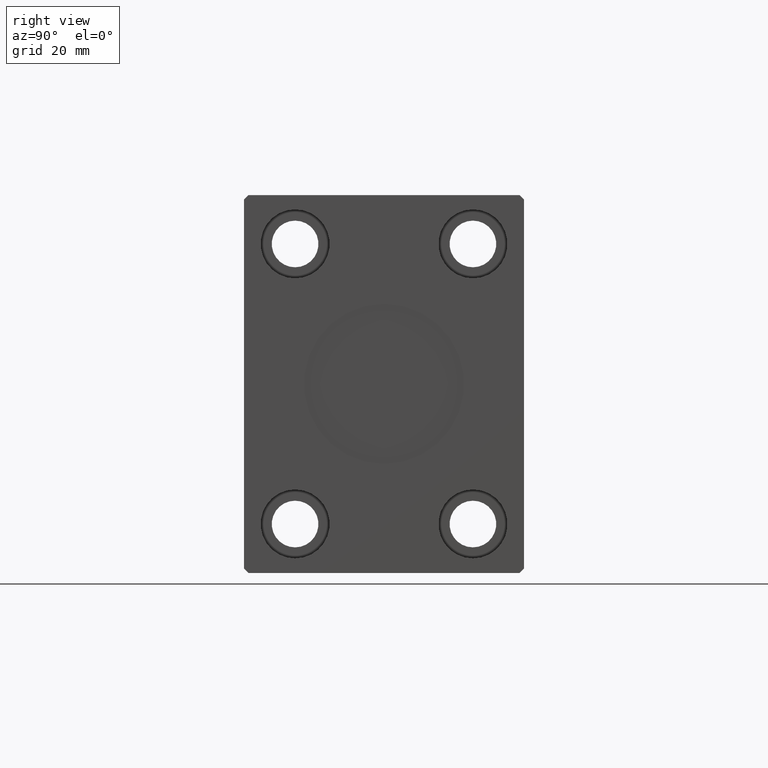
[diagram: clean part render]
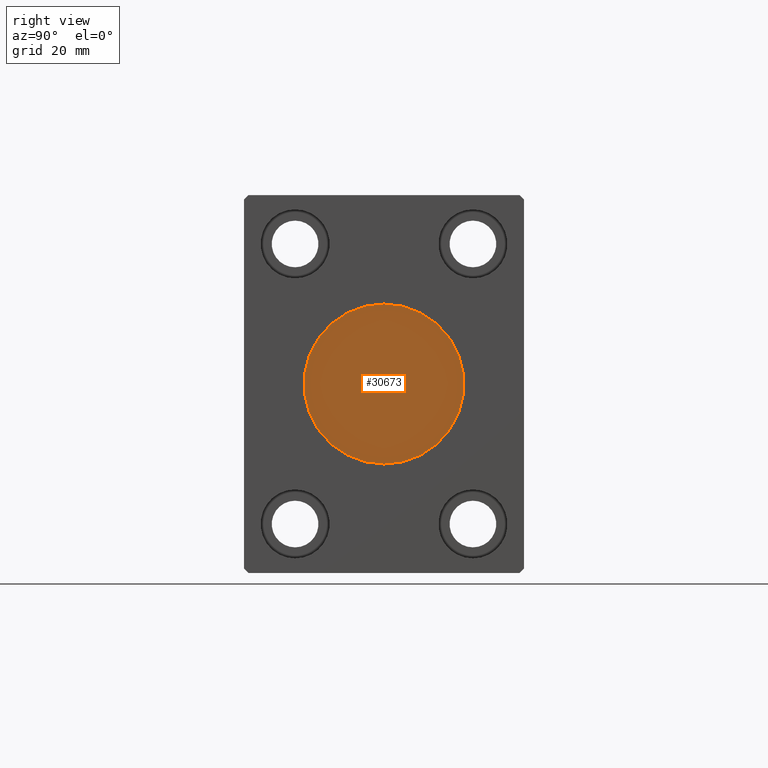
[diagram: same view with one face highlighted and labeled with its STEP entity id]
A machine part, right view. The second image highlights one B-rep face of the part: STEP entity #30673.
In plain terms, the highlighted planar face has unit normal (1, 0, 0).
Its self-contained STEP definition (entity closure, byte-faithful):
#786 = CARTESIAN_POINT ( 'NONE',  ( 125.7999999999999972, 0.000000000000000000, 0.000000000000000000 ) ) ;
#3860 = EDGE_CURVE ( 'NONE', #38504, #41032, #11770, .T. ) ;
#4439 = DIRECTION ( 'NONE',  ( 0.000000000000000000, 0.000000000000000000, -1.000000000000000000 ) ) ;
#5430 = EDGE_LOOP ( 'NONE', ( #16179, #37295 ) ) ;
#9178 = DIRECTION ( 'NONE',  ( 0.000000000000000000, 0.000000000000000000, -1.000000000000000000 ) ) ;
#9524 = DIRECTION ( 'NONE',  ( 1.000000000000000000, 0.000000000000000000, 0.000000000000000000 ) ) ;
#9739 = DIRECTION ( 'NONE',  ( 0.000000000000000000, 0.000000000000000000, -1.000000000000000000 ) ) ;
#11770 = CIRCLE ( 'NONE', #16567, 18.00000000000000000 ) ;
#14967 = AXIS2_PLACEMENT_3D ( 'NONE', #26884, #9524, #9739 ) ;
#16179 = ORIENTED_EDGE ( 'NONE', *, *, #17221, .T. ) ;
#16567 = AXIS2_PLACEMENT_3D ( 'NONE', #786, #26975, #4439 ) ;
#17221 = EDGE_CURVE ( 'NONE', #41032, #38504, #28538, .T. ) ;
#19057 = CARTESIAN_POINT ( 'NONE',  ( 125.7999999999999972, 0.000000000000000000, 0.000000000000000000 ) ) ;
#25705 = DIRECTION ( 'NONE',  ( 1.000000000000000000, 0.000000000000000000, 0.000000000000000000 ) ) ;
#26884 = CARTESIAN_POINT ( 'NONE',  ( 125.7999999999999972, 0.000000000000000000, 0.000000000000000000 ) ) ;
#26975 = DIRECTION ( 'NONE',  ( 1.000000000000000000, 0.000000000000000000, 0.000000000000000000 ) ) ;
#28538 = CIRCLE ( 'NONE', #31978, 18.00000000000000000 ) ;
#28633 = CARTESIAN_POINT ( 'NONE',  ( 125.7999999999999972, 2.204364238465235428E-15, 18.00000000000000000 ) ) ;
#29489 = FACE_OUTER_BOUND ( 'NONE', #5430, .T. ) ;
#30673 = ADVANCED_FACE ( 'NONE', ( #29489 ), #32495, .T. ) ;
#31978 = AXIS2_PLACEMENT_3D ( 'NONE', #19057, #25705, #9178 ) ;
#32495 = PLANE ( 'NONE',  #14967 ) ;
#35515 = CARTESIAN_POINT ( 'NONE',  ( 125.7999999999999972, 0.000000000000000000, -18.00000000000000000 ) ) ;
#37295 = ORIENTED_EDGE ( 'NONE', *, *, #3860, .T. ) ;
#38504 = VERTEX_POINT ( 'NONE', #28633 ) ;
#41032 = VERTEX_POINT ( 'NONE', #35515 ) ;